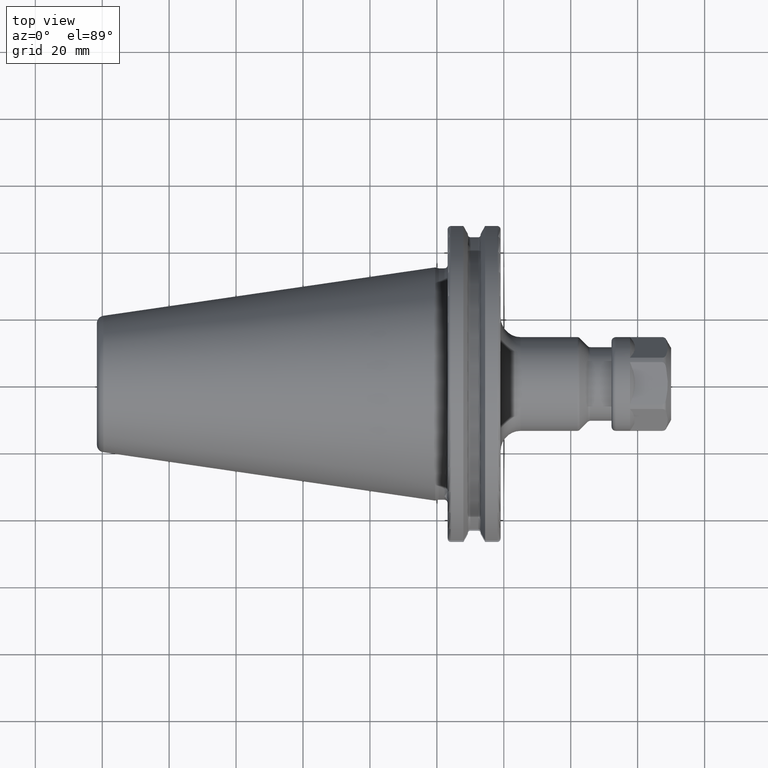
[diagram: clean part render]
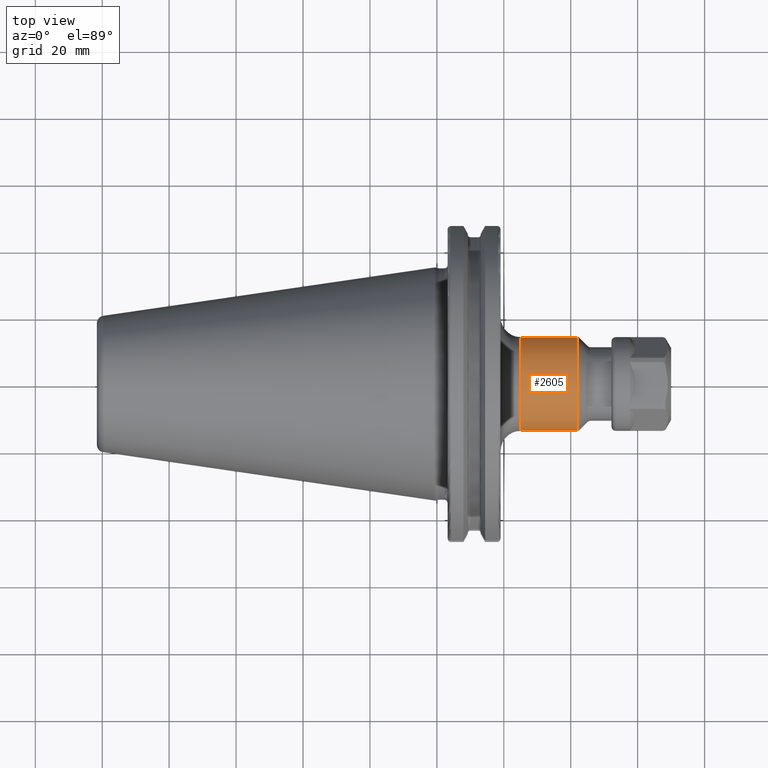
[diagram: same view with one face highlighted and labeled with its STEP entity id]
A machine part, top view. The second image highlights one B-rep face of the part: STEP entity #2605.
In plain terms, the highlighted cylindrical surface (partial cylindrical patch) has radius 14 mm, axis along (1, 0, 0).
Its self-contained STEP definition (entity closure, byte-faithful):
#962=CARTESIAN_POINT('',(4.198578643763E1,0.E0,0.E0));
#963=DIRECTION('',(-1.E0,0.E0,0.E0));
#964=DIRECTION('',(0.E0,-1.E0,0.E0));
#965=AXIS2_PLACEMENT_3D('',#962,#963,#964);
#967=CARTESIAN_POINT('',(2.505E1,0.E0,0.E0));
#968=DIRECTION('',(1.E0,0.E0,0.E0));
#969=DIRECTION('',(0.E0,1.E0,0.E0));
#970=AXIS2_PLACEMENT_3D('',#967,#968,#969);
#987=DIRECTION('',(-1.E0,0.E0,2.808079089531E-13));
#988=VECTOR('',#987,1.693578643763E1);
#989=CARTESIAN_POINT('',(4.198578643763E1,1.4E1,-2.090046586199E-12));
#990=LINE('',#989,#988);
#996=DIRECTION('',(-1.E0,0.E0,-2.808092457122E-13));
#997=VECTOR('',#996,1.693578643763E1);
#998=CARTESIAN_POINT('',(4.198578643763E1,-1.4E1,2.089605904416E-12));
#999=LINE('',#998,#997);
#1551=CARTESIAN_POINT('',(2.505E1,-1.4E1,0.E0));
#1552=CARTESIAN_POINT('',(2.505E1,1.4E1,0.E0));
#1553=VERTEX_POINT('',#1551);
#1554=VERTEX_POINT('',#1552);
#1563=CARTESIAN_POINT('',(4.198578643763E1,1.4E1,0.E0));
#1564=CARTESIAN_POINT('',(4.198578643763E1,-1.4E1,0.E0));
#1565=VERTEX_POINT('',#1563);
#1566=VERTEX_POINT('',#1564);
#2591=CARTESIAN_POINT('',(1.70325E1,0.E0,0.E0));
#2592=DIRECTION('',(1.E0,0.E0,0.E0));
#2593=DIRECTION('',(0.E0,-1.E0,0.E0));
#2594=AXIS2_PLACEMENT_3D('',#2591,#2592,#2593);
#2595=CYLINDRICAL_SURFACE('',#2594,1.4E1);
#2597=ORIENTED_EDGE('',*,*,#2596,.F.);
#2599=ORIENTED_EDGE('',*,*,#2598,.T.);
#2600=ORIENTED_EDGE('',*,*,#2585,.F.);
#2602=ORIENTED_EDGE('',*,*,#2601,.F.);
#2603=EDGE_LOOP('',(#2597,#2599,#2600,#2602));
#2604=FACE_OUTER_BOUND('',#2603,.F.);
#2605=ADVANCED_FACE('',(#2604),#2595,.T.);
#966=CIRCLE('',#965,1.4E1);
#971=CIRCLE('',#970,1.4E1);
#2585=EDGE_CURVE('',#1554,#1553,#971,.T.);
#2596=EDGE_CURVE('',#1566,#1565,#966,.T.);
#2598=EDGE_CURVE('',#1566,#1553,#999,.T.);
#2601=EDGE_CURVE('',#1565,#1554,#990,.T.);